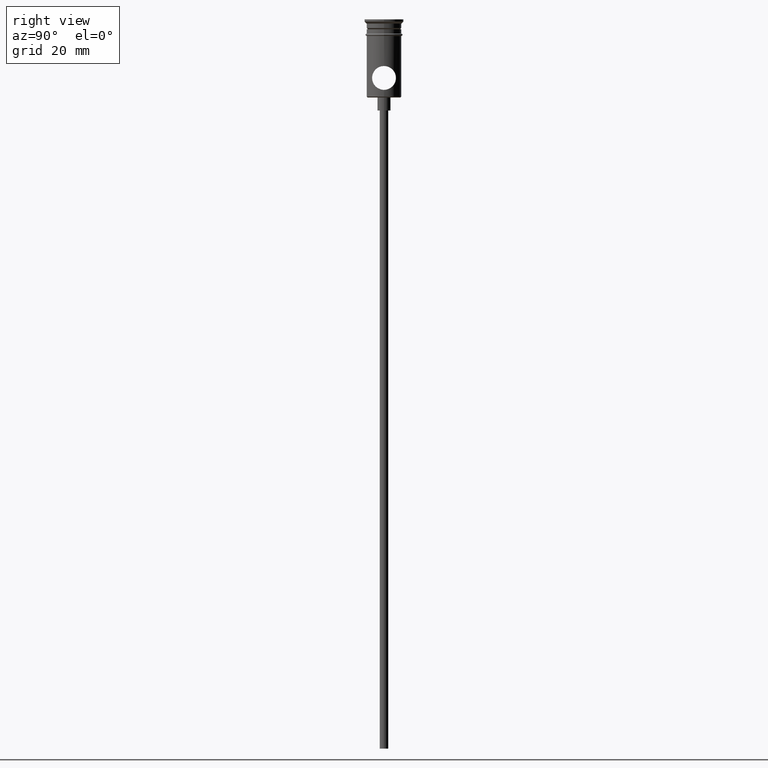
[diagram: clean part render]
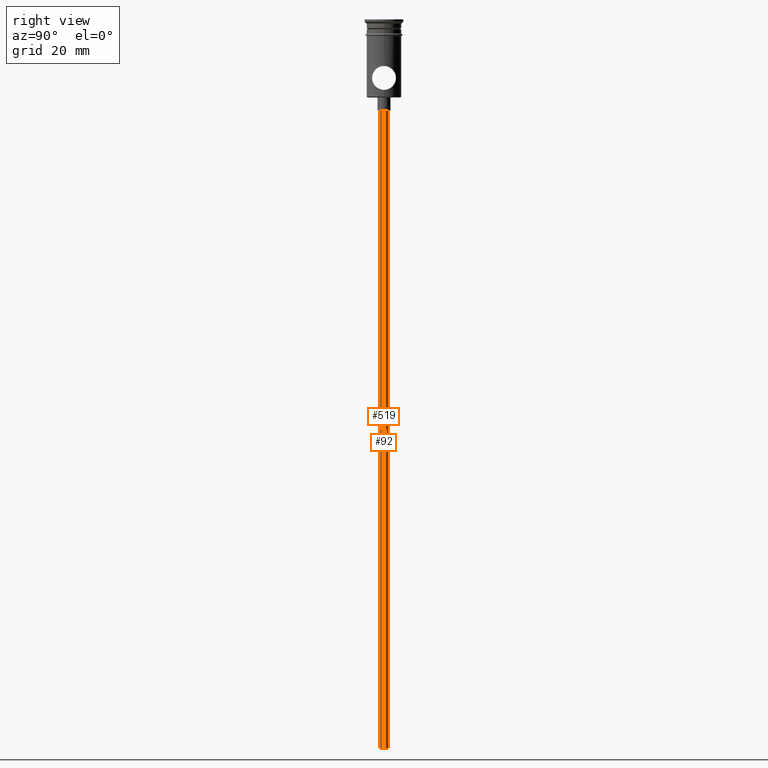
[diagram: same view with one multi-face feature highlighted, each face labeled with its STEP entity id]
A machine part, right view. The highlighted faces form ONE feature: a constant-radius fillet chain: 2 tangent blend faces with common blend radius 1 mm. The faces share edges in the B-rep.
Their STEP definitions:
[1] entity #519 (Cylinder):
#24 = CARTESIAN_POINT ( 'NONE',  ( 0.9999999999999997780, 0.000000000000000000, -167.9999999999999716 ) ) ;
#43 = CARTESIAN_POINT ( 'NONE',  ( -0.9999999999999997780, 1.224646799147352961E-16, -167.9999999999999716 ) ) ;
#95 = ORIENTED_EDGE ( 'NONE', *, *, #1265, .F. ) ;
#115 = EDGE_LOOP ( 'NONE', ( #95, #723, #1073, #1201 ) ) ;
#194 = AXIS2_PLACEMENT_3D ( 'NONE', #1083, #1311, #443 ) ;
#200 = EDGE_CURVE ( 'NONE', #659, #1249, #941, .T. ) ;
#275 = AXIS2_PLACEMENT_3D ( 'NONE', #1214, #1375, #1046 ) ;
#339 = CARTESIAN_POINT ( 'NONE',  ( 0.9999999999999997780, 0.000000000000000000, -167.9999999999999716 ) ) ;
#361 = VECTOR ( 'NONE', #946, 1000.000000000000000 ) ;
#443 = DIRECTION ( 'NONE',  ( 1.000000000000000000, 0.000000000000000000, 0.000000000000000000 ) ) ;
#448 = CARTESIAN_POINT ( 'NONE',  ( 0.9999999999999997780, 0.000000000000000000, -20.99999999999999645 ) ) ;
#472 = CARTESIAN_POINT ( 'NONE',  ( 0.000000000000000000, 0.000000000000000000, -20.99999999999999645 ) ) ;
#473 = CARTESIAN_POINT ( 'NONE',  ( -0.9999999999999997780, 1.224646799147352961E-16, -167.9999999999999716 ) ) ;
#486 = DIRECTION ( 'NONE',  ( -0.000000000000000000, -0.000000000000000000, 1.000000000000000000 ) ) ;
#495 = CARTESIAN_POINT ( 'NONE',  ( -0.9999999999999997780, 1.224646799147352961E-16, -20.99999999999999645 ) ) ;
#512 = LINE ( 'NONE', #24, #361 ) ;
#519 = ADVANCED_FACE ( 'NONE', ( #1199 ), #658, .T. ) ;
#529 = CIRCLE ( 'NONE', #275, 0.9999999999999997780 ) ;
#595 = AXIS2_PLACEMENT_3D ( 'NONE', #472, #704, #1353 ) ;
#658 = CYLINDRICAL_SURFACE ( 'NONE', #194, 0.9999999999999997780 ) ;
#659 = VERTEX_POINT ( 'NONE', #448 ) ;
#704 = DIRECTION ( 'NONE',  ( 0.000000000000000000, 0.000000000000000000, -1.000000000000000000 ) ) ;
#717 = VERTEX_POINT ( 'NONE', #43 ) ;
#723 = ORIENTED_EDGE ( 'NONE', *, *, #1041, .F. ) ;
#869 = VERTEX_POINT ( 'NONE', #339 ) ;
#941 = CIRCLE ( 'NONE', #595, 0.9999999999999997780 ) ;
#946 = DIRECTION ( 'NONE',  ( -0.000000000000000000, -0.000000000000000000, 1.000000000000000000 ) ) ;
#1037 = EDGE_CURVE ( 'NONE', #869, #659, #512, .T. ) ;
#1041 = EDGE_CURVE ( 'NONE', #869, #717, #529, .T. ) ;
#1046 = DIRECTION ( 'NONE',  ( -1.000000000000000000, 0.000000000000000000, 0.000000000000000000 ) ) ;
#1073 = ORIENTED_EDGE ( 'NONE', *, *, #1037, .T. ) ;
#1083 = CARTESIAN_POINT ( 'NONE',  ( 0.000000000000000000, 0.000000000000000000, -167.9999999999999716 ) ) ;
#1117 = LINE ( 'NONE', #473, #1134 ) ;
#1134 = VECTOR ( 'NONE', #486, 1000.000000000000000 ) ;
#1199 = FACE_OUTER_BOUND ( 'NONE', #115, .T. ) ;
#1201 = ORIENTED_EDGE ( 'NONE', *, *, #200, .T. ) ;
#1214 = CARTESIAN_POINT ( 'NONE',  ( 0.000000000000000000, 0.000000000000000000, -167.9999999999999716 ) ) ;
#1249 = VERTEX_POINT ( 'NONE', #495 ) ;
#1265 = EDGE_CURVE ( 'NONE', #717, #1249, #1117, .T. ) ;
#1311 = DIRECTION ( 'NONE',  ( -0.000000000000000000, -0.000000000000000000, 1.000000000000000000 ) ) ;
#1353 = DIRECTION ( 'NONE',  ( -1.000000000000000000, 0.000000000000000000, 0.000000000000000000 ) ) ;
#1375 = DIRECTION ( 'NONE',  ( 0.000000000000000000, 0.000000000000000000, -1.000000000000000000 ) ) ;
[2] entity #92 (Cylinder):
#20 = CARTESIAN_POINT ( 'NONE',  ( 0.000000000000000000, 0.000000000000000000, -20.99999999999999645 ) ) ;
#24 = CARTESIAN_POINT ( 'NONE',  ( 0.9999999999999997780, 0.000000000000000000, -167.9999999999999716 ) ) ;
#43 = CARTESIAN_POINT ( 'NONE',  ( -0.9999999999999997780, 1.224646799147352961E-16, -167.9999999999999716 ) ) ;
#92 = ADVANCED_FACE ( 'NONE', ( #1114 ), #1130, .T. ) ;
#121 = DIRECTION ( 'NONE',  ( 0.000000000000000000, 0.000000000000000000, -1.000000000000000000 ) ) ;
#273 = AXIS2_PLACEMENT_3D ( 'NONE', #20, #458, #899 ) ;
#290 = ORIENTED_EDGE ( 'NONE', *, *, #1265, .T. ) ;
#339 = CARTESIAN_POINT ( 'NONE',  ( 0.9999999999999997780, 0.000000000000000000, -167.9999999999999716 ) ) ;
#348 = ORIENTED_EDGE ( 'NONE', *, *, #1037, .F. ) ;
#361 = VECTOR ( 'NONE', #946, 1000.000000000000000 ) ;
#448 = CARTESIAN_POINT ( 'NONE',  ( 0.9999999999999997780, 0.000000000000000000, -20.99999999999999645 ) ) ;
#450 = ORIENTED_EDGE ( 'NONE', *, *, #654, .F. ) ;
#458 = DIRECTION ( 'NONE',  ( 0.000000000000000000, 0.000000000000000000, -1.000000000000000000 ) ) ;
#473 = CARTESIAN_POINT ( 'NONE',  ( -0.9999999999999997780, 1.224646799147352961E-16, -167.9999999999999716 ) ) ;
#486 = DIRECTION ( 'NONE',  ( -0.000000000000000000, -0.000000000000000000, 1.000000000000000000 ) ) ;
#495 = CARTESIAN_POINT ( 'NONE',  ( -0.9999999999999997780, 1.224646799147352961E-16, -20.99999999999999645 ) ) ;
#512 = LINE ( 'NONE', #24, #361 ) ;
#562 = DIRECTION ( 'NONE',  ( -1.000000000000000000, 0.000000000000000000, 0.000000000000000000 ) ) ;
#654 = EDGE_CURVE ( 'NONE', #717, #869, #1132, .T. ) ;
#659 = VERTEX_POINT ( 'NONE', #448 ) ;
#679 = AXIS2_PLACEMENT_3D ( 'NONE', #1244, #1332, #800 ) ;
#717 = VERTEX_POINT ( 'NONE', #43 ) ;
#800 = DIRECTION ( 'NONE',  ( 1.000000000000000000, 0.000000000000000000, 0.000000000000000000 ) ) ;
#845 = AXIS2_PLACEMENT_3D ( 'NONE', #1091, #121, #562 ) ;
#869 = VERTEX_POINT ( 'NONE', #339 ) ;
#899 = DIRECTION ( 'NONE',  ( -1.000000000000000000, 0.000000000000000000, 0.000000000000000000 ) ) ;
#902 = EDGE_CURVE ( 'NONE', #1249, #659, #1253, .T. ) ;
#946 = DIRECTION ( 'NONE',  ( -0.000000000000000000, -0.000000000000000000, 1.000000000000000000 ) ) ;
#1037 = EDGE_CURVE ( 'NONE', #869, #659, #512, .T. ) ;
#1091 = CARTESIAN_POINT ( 'NONE',  ( 0.000000000000000000, 0.000000000000000000, -167.9999999999999716 ) ) ;
#1114 = FACE_OUTER_BOUND ( 'NONE', #1202, .T. ) ;
#1117 = LINE ( 'NONE', #473, #1134 ) ;
#1123 = ORIENTED_EDGE ( 'NONE', *, *, #902, .T. ) ;
#1130 = CYLINDRICAL_SURFACE ( 'NONE', #679, 0.9999999999999997780 ) ;
#1132 = CIRCLE ( 'NONE', #845, 0.9999999999999997780 ) ;
#1134 = VECTOR ( 'NONE', #486, 1000.000000000000000 ) ;
#1202 = EDGE_LOOP ( 'NONE', ( #450, #290, #1123, #348 ) ) ;
#1244 = CARTESIAN_POINT ( 'NONE',  ( 0.000000000000000000, 0.000000000000000000, -167.9999999999999716 ) ) ;
#1249 = VERTEX_POINT ( 'NONE', #495 ) ;
#1253 = CIRCLE ( 'NONE', #273, 0.9999999999999997780 ) ;
#1265 = EDGE_CURVE ( 'NONE', #717, #1249, #1117, .T. ) ;
#1332 = DIRECTION ( 'NONE',  ( -0.000000000000000000, -0.000000000000000000, 1.000000000000000000 ) ) ;